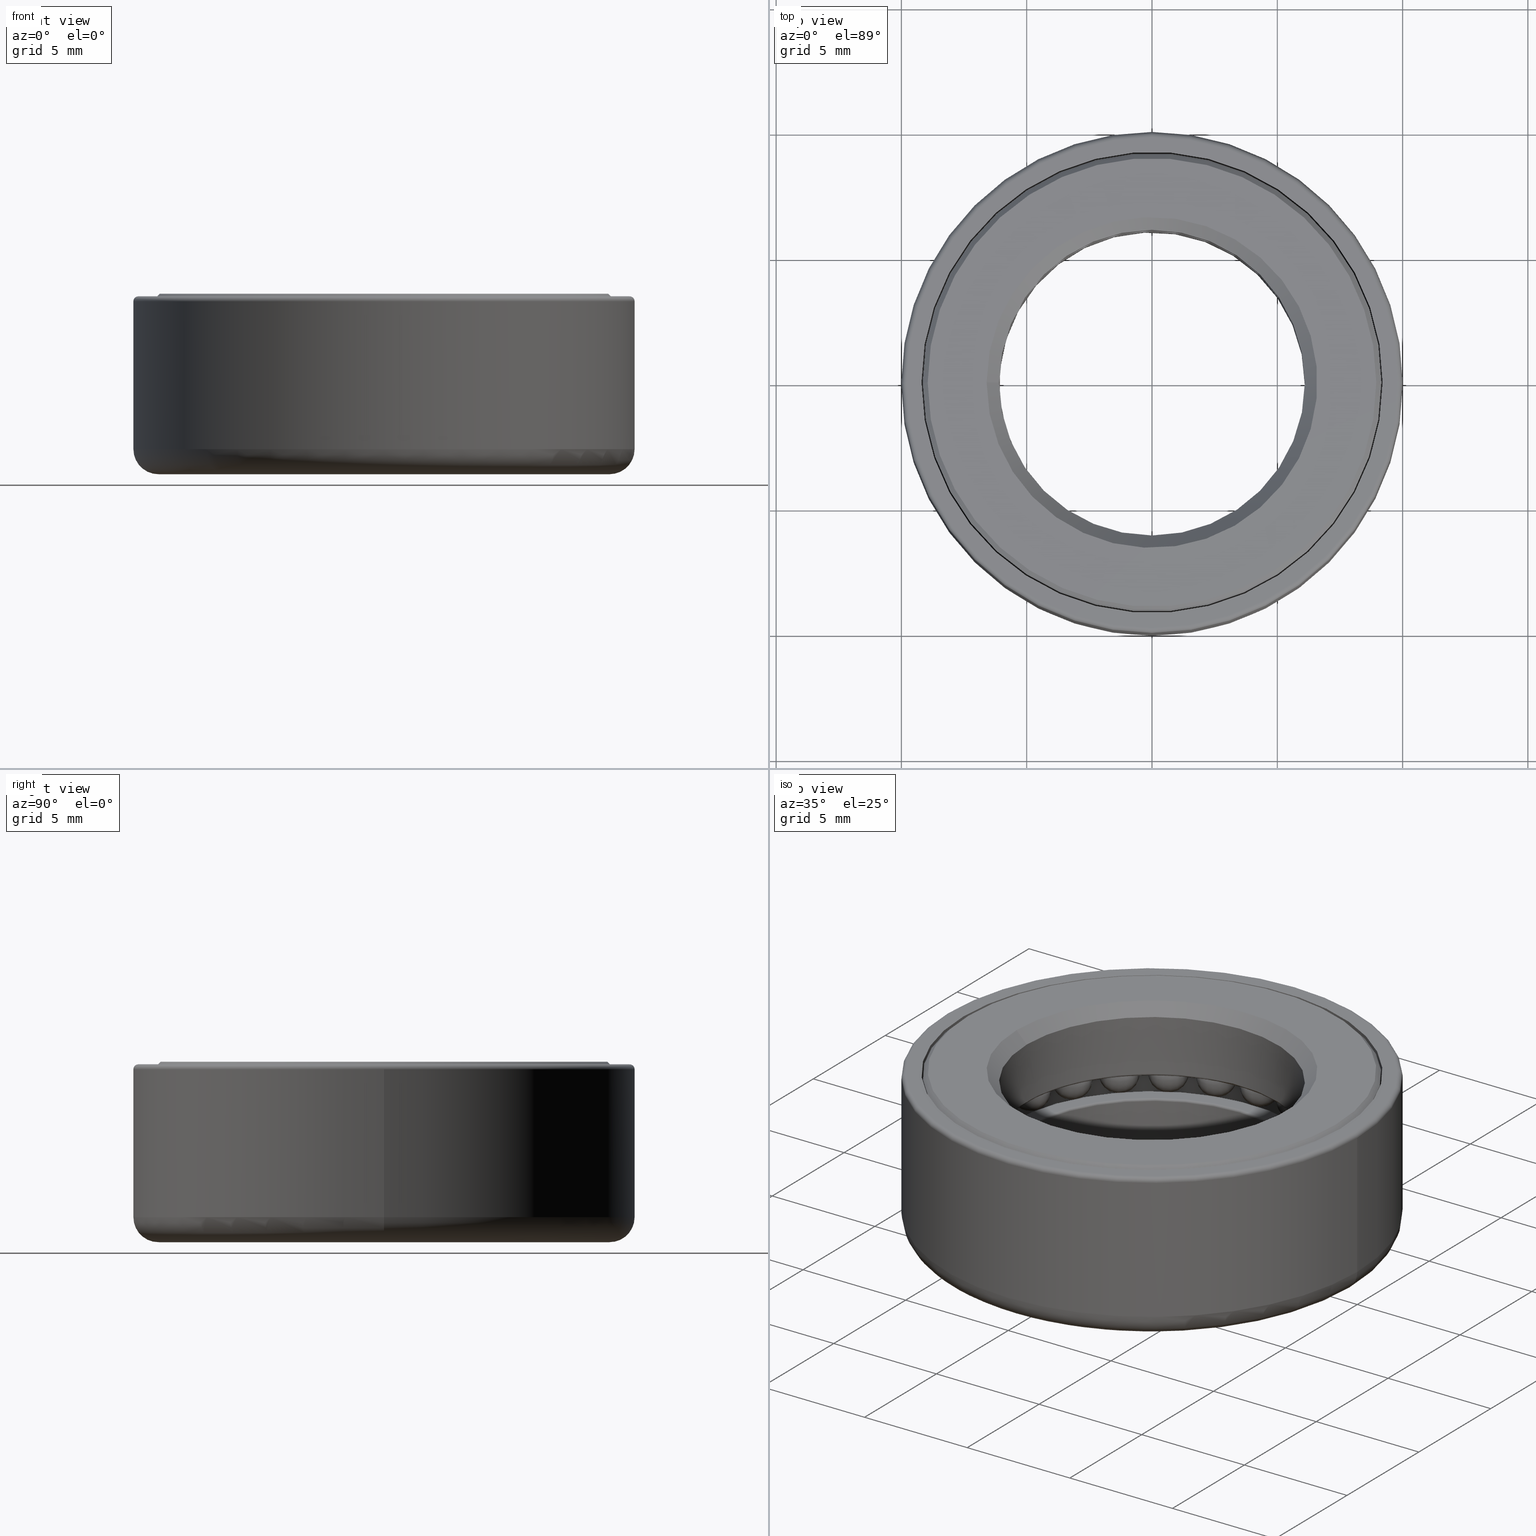
[diagram: canonical four-view strip — front | top / right | iso, engineering-drawing reading convention]
A machine part, canonical four-view strip (front | top / right | iso — engineering-drawing reading convention). The complete STEP part file that produces these views, byte-faithful:
ISO-10303-21;
HEADER;
FILE_DESCRIPTION (( 'STEP AP203' ),
    '1' );
FILE_NAME ('400-12.step',
    '2020-05-18T09:38:57',
    ( '' ),
    ( '' ),
    'SwSTEP 2.0',
    'SolidWorks 2015',
    '' );
FILE_SCHEMA (( 'CONFIG_CONTROL_DESIGN' ));
ENDSEC;

DATA;
#1 = PLANE ( 'NONE',  #569 ) ;
#2 = DIRECTION ( 'NONE',  ( 1.000000000000000000, 0.0000000000000000000, 0.0000000000000000000 ) ) ;
#3 = UNCERTAINTY_MEASURE_WITH_UNIT (LENGTH_MEASURE( 1.000000000000000100E-005 ), #535, 'distance_accuracy_value', 'NONE');
#4 = DIRECTION ( 'NONE',  ( 1.000000000000000000, 0.0000000000000000000, 0.0000000000000000000 ) ) ;
#5 = CYLINDRICAL_SURFACE ( 'NONE', #250, 6.099999999999999600 ) ;
#6 = SPHERICAL_SURFACE ( 'NONE', #201, 0.8112068965517236200 ) ;
#7 = AXIS2_PLACEMENT_3D ( 'NONE', #565, #81, #445 ) ;
#8 = DIRECTION ( 'NONE',  ( 0.2588190451025246800, -0.9659258262890672000, 0.0000000000000000000 ) ) ;
#9 = CARTESIAN_POINT ( 'NONE',  ( 0.0000000000000000000, 0.0000000000000000000, -0.6000000000000002000 ) ) ;
#10 = EDGE_CURVE ( 'NONE', #489, #489, #293, .T. ) ;
#11 = VERTEX_POINT ( 'NONE', #231 ) ;
#12 = DIRECTION ( 'NONE',  ( 0.7071067811865512400, -0.7071067811865438000, 0.0000000000000000000 ) ) ;
#13 = ORIENTED_EDGE ( 'NONE', *, *, #715, .F. ) ;
#14 = EDGE_LOOP ( 'NONE', ( #383 ) ) ;
#15 = MANIFOLD_SOLID_BREP ( 'Kreismuster1[7]', #664 ) ;
#16 = DIRECTION ( 'NONE',  ( 0.0000000000000000000, 0.0000000000000000000, -1.000000000000000000 ) ) ;
#17 = FACE_OUTER_BOUND ( 'NONE', #107, .T. ) ;
#18 = ADVANCED_FACE ( 'NONE', ( #698, #218 ), #560, .T. ) ;
#19 = AXIS2_PLACEMENT_3D ( 'NONE', #453, #79, #205 ) ;
#20 = ADVANCED_FACE ( 'NONE', ( #495, #108 ), #757, .T. ) ;
#21 = DIRECTION ( 'NONE',  ( 1.000000000000000000, 0.0000000000000000000, 0.0000000000000000000 ) ) ;
#22 = ORIENTED_EDGE ( 'NONE', *, *, #782, .T. ) ;
#23 = CIRCLE ( 'NONE', #541, 9.149999999999998600 ) ;
#24 = DIRECTION ( 'NONE',  ( -0.2588190451025314500, 0.9659258262890653100, 0.0000000000000000000 ) ) ;
#25 = EDGE_LOOP ( 'NONE', ( #779 ) ) ;
#26 = EDGE_CURVE ( 'NONE', #55, #55, #171, .T. ) ;
#27 = FACE_OUTER_BOUND ( 'NONE', #765, .T. ) ;
#28 = CARTESIAN_POINT ( 'NONE',  ( 0.0000000000000000000, 0.0000000000000000000, -0.6000000000000002000 ) ) ;
#29 = DIRECTION ( 'NONE',  ( -1.000000000000000000, 0.0000000000000000000, 0.0000000000000000000 ) ) ;
#30 = DIRECTION ( 'NONE',  ( -0.0000000000000000000, -0.0000000000000000000, 1.000000000000000000 ) ) ;
#31 = PERSON_AND_ORGANIZATION ( #281, #335 ) ;
#32 = DIRECTION ( 'NONE',  ( -0.0000000000000000000, -0.0000000000000000000, 1.000000000000000000 ) ) ;
#33 = VERTEX_POINT ( 'NONE', #648 ) ;
#34 = AXIS2_PLACEMENT_3D ( 'NONE', #91, #341, #87 ) ;
#35 = EDGE_LOOP ( 'NONE', ( #44 ) ) ;
#36 = CLOSED_SHELL ( 'NONE', ( #227 ) ) ;
#37 = EDGE_LOOP ( 'NONE', ( #340 ) ) ;
#38 = FACE_BOUND ( 'NONE', #658, .T. ) ;
#39 = DIRECTION ( 'NONE',  ( 1.000000000000000000, 0.0000000000000000000, 0.0000000000000000000 ) ) ;
#40 = EDGE_CURVE ( 'NONE', #299, #299, #680, .T. ) ;
#41 = ADVANCED_FACE ( 'NONE', ( ), #6, .T. ) ;
#42 = DIRECTION ( 'NONE',  ( -0.0000000000000000000, -0.0000000000000000000, 1.000000000000000000 ) ) ;
#43 = CARTESIAN_POINT ( 'NONE',  ( -8.949999999999995700, 0.0000000000000000000, 3.600000000000000100 ) ) ;
#44 = ORIENTED_EDGE ( 'NONE', *, *, #477, .T. ) ;
#45 = CYLINDRICAL_SURFACE ( 'NONE', #591, 10.00000000000000000 ) ;
#46 = CLOSED_SHELL ( 'NONE', ( #517, #318, #69, #462, #212, #695, #412, #623, #77, #18, #155, #20, #670 ) ) ;
#47 = MANIFOLD_SOLID_BREP ( 'Kreismuster1[9]', #437 ) ;
#48 = VERTEX_POINT ( 'NONE', #401 ) ;
#49 = CARTESIAN_POINT ( 'NONE',  ( -10.00000000000000000, 0.0000000000000000000, 3.299999999999999800 ) ) ;
#50 = AXIS2_PLACEMENT_3D ( 'NONE', #97, #410, #770 ) ;
#51 = CLOSED_SHELL ( 'NONE', ( #135 ) ) ;
#52 = ORIENTED_EDGE ( 'NONE', *, *, #26, .F. ) ;
#53 = CYLINDRICAL_SURFACE ( 'NONE', #284, 6.899999999999999500 ) ;
#54 = SECURITY_CLASSIFICATION ( '', '', #426 ) ;
#55 = VERTEX_POINT ( 'NONE', #515 ) ;
#56 = DIRECTION ( 'NONE',  ( 0.0000000000000000000, 0.0000000000000000000, -1.000000000000000000 ) ) ;
#57 = AXIS2_PLACEMENT_3D ( 'NONE', #158, #520, #39 ) ;
#58 = FACE_OUTER_BOUND ( 'NONE', #25, .T. ) ;
#59 = DIRECTION ( 'NONE',  ( 1.000000000000000000, 0.0000000000000000000, 0.0000000000000000000 ) ) ;
#60 = AXIS2_PLACEMENT_3D ( 'NONE', #574, #690, #90 ) ;
#61 = DIRECTION ( 'NONE',  ( -1.000000000000000000, 0.0000000000000000000, -0.0000000000000000000 ) ) ;
#62 = SPHERICAL_SURFACE ( 'NONE', #307, 0.8112068965517236200 ) ;
#63 = ADVANCED_FACE ( 'NONE', ( ), #474, .T. ) ;
#64 = DIRECTION ( 'NONE',  ( -0.0000000000000000000, -0.0000000000000000000, 1.000000000000000000 ) ) ;
#65 = ORIENTED_EDGE ( 'NONE', *, *, #217, .T. ) ;
#66 = ORIENTED_EDGE ( 'NONE', *, *, #232, .T. ) ;
#67 = AXIS2_PLACEMENT_3D ( 'NONE', #487, #246, #611 ) ;
#68 = CARTESIAN_POINT ( 'NONE',  ( 0.0000000000000000000, 0.0000000000000000000, 2.800000000000000300 ) ) ;
#69 = ADVANCED_FACE ( 'NONE', ( #667, #38 ), #526, .F. ) ;
#70 = DIRECTION ( 'NONE',  ( 0.0000000000000000000, 0.0000000000000000000, -1.000000000000000000 ) ) ;
#71 = DIRECTION ( 'NONE',  ( 0.0000000000000000000, 0.0000000000000000000, -1.000000000000000000 ) ) ;
#72 = EDGE_CURVE ( 'NONE', #188, #188, #364, .T. ) ;
#73 = DIRECTION ( 'NONE',  ( 0.8660254037844415900, -0.4999999999999948400, 0.0000000000000000000 ) ) ;
#74 = VERTEX_POINT ( 'NONE', #476 ) ;
#75 = CLOSED_SHELL ( 'NONE', ( #508 ) ) ;
#76 = CARTESIAN_POINT ( 'NONE',  ( 7.281914957670624100, -1.951183232259879200, 0.0000000000000000000 ) ) ;
#77 = ADVANCED_FACE ( 'NONE', ( #632, #147 ), #255, .F. ) ;
#78 = DIRECTION ( 'NONE',  ( -0.0000000000000000000, -0.0000000000000000000, 1.000000000000000000 ) ) ;
#79 = DIRECTION ( 'NONE',  ( -0.0000000000000000000, -0.0000000000000000000, 1.000000000000000000 ) ) ;
#80 = ADVANCED_FACE ( 'NONE', ( #312, #580 ), #587, .F. ) ;
#81 = DIRECTION ( 'NONE',  ( 0.4999999999999920100, 0.8660254037844432600, 0.0000000000000000000 ) ) ;
#82 = CARTESIAN_POINT ( 'NONE',  ( 0.0000000000000000000, 0.0000000000000000000, -2.750000000000000000 ) ) ;
#83 = MANIFOLD_SOLID_BREP ( 'Kreismuster1[8]', #686 ) ;
#84 = CALENDAR_DATE ( 2020, 18, 5 ) ;
#85 = AXIS2_PLACEMENT_3D ( 'NONE', #618, #260, #59 ) ;
#86 = CLOSED_SHELL ( 'NONE', ( #744 ) ) ;
#87 = DIRECTION ( 'NONE',  ( 1.000000000000000000, 0.0000000000000000000, 0.0000000000000000000 ) ) ;
#88 = AXIS2_PLACEMENT_3D ( 'NONE', #663, #184, #432 ) ;
#89 = DIRECTION ( 'NONE',  ( 0.0000000000000000000, 0.0000000000000000000, -1.000000000000000000 ) ) ;
#90 = DIRECTION ( 'NONE',  ( 1.000000000000000000, 0.0000000000000000000, 0.0000000000000000000 ) ) ;
#91 = CARTESIAN_POINT ( 'NONE',  ( 0.0000000000000000000, 0.0000000000000000000, 0.0000000000000000000 ) ) ;
#92 = CARTESIAN_POINT ( 'NONE',  ( 0.0000000000000000000, 0.0000000000000000000, -3.600000000000000100 ) ) ;
#93 = ADVANCED_FACE ( 'NONE', ( ), #403, .T. ) ;
#94 = DATE_AND_TIME ( #263, #533 ) ;
#95 = CC_DESIGN_DATE_AND_TIME_ASSIGNMENT ( #120, #598, ( #54 ) ) ;
#96 = DIRECTION ( 'NONE',  ( 0.0000000000000000000, 0.0000000000000000000, -1.000000000000000000 ) ) ;
#97 = CARTESIAN_POINT ( 'NONE',  ( 0.0000000000000000000, 0.0000000000000000000, 3.099999999999997900 ) ) ;
#98 = EDGE_LOOP ( 'NONE', ( #601 ) ) ;
#99 = SPHERICAL_SURFACE ( 'NONE', #723, 0.8112068965517236200 ) ;
#100 = CARTESIAN_POINT ( 'NONE',  ( 0.0000000000000000000, 0.0000000000000000000, 0.0000000000000000000 ) ) ;
#101 = FACE_BOUND ( 'NONE', #156, .T. ) ;
#102 = AXIS2_PLACEMENT_3D ( 'NONE', #28, #209, #282 ) ;
#103 = CARTESIAN_POINT ( 'NONE',  ( 6.899999999999999500, 0.0000000000000000000, 2.800000000000000300 ) ) ;
#104 = AXIS2_PLACEMENT_3D ( 'NONE', #442, #378, #728 ) ;
#105 = CARTESIAN_POINT ( 'NONE',  ( 10.00000000000000000, 0.0000000000000000000, -2.600000000000000100 ) ) ;
#106 = SPHERICAL_SURFACE ( 'NONE', #332, 0.8112068965517236200 ) ;
#107 = EDGE_LOOP ( 'NONE', ( #215 ) ) ;
#108 = FACE_OUTER_BOUND ( 'NONE', #37, .T. ) ;
#109 = APPLICATION_PROTOCOL_DEFINITION ( 'international standard', 'config_control_design', 1994, #359 ) ;
#110 = AXIS2_PLACEMENT_3D ( 'NONE', #739, #257, #199 ) ;
#111 = CALENDAR_DATE ( 2020, 18, 5 ) ;
#112 = APPROVAL_PERSON_ORGANIZATION ( #287, #708, #539 ) ;
#113 = EDGE_LOOP ( 'NONE', ( #52 ) ) ;
#114 = CARTESIAN_POINT ( 'NONE',  ( -7.281914957670597500, -1.951183232259981400, 0.0000000000000000000 ) ) ;
#115 = FACE_OUTER_BOUND ( 'NONE', #351, .T. ) ;
#116 = MANIFOLD_SOLID_BREP ( 'Kreismuster1[1]', #175 ) ;
#117 = PLANE ( 'NONE',  #534 ) ;
#118 = EDGE_CURVE ( 'NONE', #408, #408, #228, .T. ) ;
#119 = CC_DESIGN_APPROVAL ( #419, ( #559 ) ) ;
#120 = DATE_AND_TIME ( #653, #546 ) ;
#121 = DIRECTION ( 'NONE',  ( 0.0000000000000000000, 0.0000000000000000000, -1.000000000000000000 ) ) ;
#122 = DIRECTION ( 'NONE',  ( 0.0000000000000000000, 0.0000000000000000000, -1.000000000000000000 ) ) ;
#123 = AXIS2_PLACEMENT_3D ( 'NONE', #100, #712, #225 ) ;
#124 = SPHERICAL_SURFACE ( 'NONE', #172, 0.8112068965517236200 ) ;
#125 = ORIENTED_EDGE ( 'NONE', *, *, #701, .T. ) ;
#126 = DIRECTION ( 'NONE',  ( -0.7071067811865561200, 0.7071067811865389100, 0.0000000000000000000 ) ) ;
#127 = DIRECTION ( 'NONE',  ( 0.0000000000000000000, 0.0000000000000000000, -1.000000000000000000 ) ) ;
#128 = CARTESIAN_POINT ( 'NONE',  ( -1.951183232259955800, 7.281914957670601900, 0.0000000000000000000 ) ) ;
#129 = MANIFOLD_SOLID_BREP ( 'Kreismuster1[23]', #676 ) ;
#130 = AXIS2_PLACEMENT_3D ( 'NONE', #704, #242, #56 ) ;
#131 = ADVANCED_FACE ( 'NONE', ( ), #595, .T. ) ;
#132 = DIRECTION ( 'NONE',  ( 0.0000000000000000000, 0.0000000000000000000, -1.000000000000000000 ) ) ;
#133 = DIRECTION ( 'NONE',  ( 0.0000000000000000000, 0.0000000000000000000, -1.000000000000000000 ) ) ;
#134 = CARTESIAN_POINT ( 'NONE',  ( 0.0000000000000000000, 0.0000000000000000000, -0.6000000000000002000 ) ) ;
#135 = ADVANCED_FACE ( 'NONE', ( ), #504, .T. ) ;
#136 = EDGE_LOOP ( 'NONE', ( #301 ) ) ;
#137 = CIRCLE ( 'NONE', #615, 6.899999999999999500 ) ;
#138 = CARTESIAN_POINT ( 'NONE',  ( 0.0000000000000000000, 0.0000000000000000000, 3.299999999999999800 ) ) ;
#139 = CARTESIAN_POINT ( 'NONE',  ( 7.538793103448274900, 7.896466631426689100E-014, 0.0000000000000000000 ) ) ;
#140 = AXIS2_PLACEMENT_3D ( 'NONE', #328, #324, #683 ) ;
#141 = VERTEX_POINT ( 'NONE', #103 ) ;
#142 = ADVANCED_FACE ( 'NONE', ( ), #342, .T. ) ;
#143 = MANIFOLD_SOLID_BREP ( 'Kreismuster1[2]', #679 ) ;
#144 = CLOSED_SHELL ( 'NONE', ( #63 ) ) ;
#145 = CARTESIAN_POINT ( 'NONE',  ( 0.0000000000000000000, 0.0000000000000000000, 0.0000000000000000000 ) ) ;
#146 = SPHERICAL_SURFACE ( 'NONE', #208, 0.8112068965517236200 ) ;
#147 = FACE_OUTER_BOUND ( 'NONE', #392, .T. ) ;
#148 = CC_DESIGN_APPROVAL ( #650, ( #54 ) ) ;
#149 = CARTESIAN_POINT ( 'NONE',  ( 3.769396551724191200, -6.528786341461102300, 0.0000000000000000000 ) ) ;
#150 = DIRECTION ( 'NONE',  ( 0.0000000000000000000, -0.0000000000000000000, 1.000000000000000000 ) ) ;
#151 = AXIS2_PLACEMENT_3D ( 'NONE', #642, #42, #525 ) ;
#152 = DIRECTION ( 'NONE',  ( -1.000000000000000000, 0.0000000000000000000, 0.0000000000000000000 ) ) ;
#153 = DIRECTION ( 'NONE',  ( 1.000000000000000000, 0.0000000000000000000, 0.0000000000000000000 ) ) ;
#154 = EDGE_LOOP ( 'NONE', ( #640 ) ) ;
#155 = ADVANCED_FACE ( 'NONE', ( #641, #483 ), #731, .T. ) ;
#156 = EDGE_LOOP ( 'NONE', ( #267 ) ) ;
#157 = EDGE_LOOP ( 'NONE', ( #479 ) ) ;
#158 = CARTESIAN_POINT ( 'NONE',  ( 0.0000000000000000000, 0.0000000000000000000, -2.750000000000000000 ) ) ;
#159 = ORIENTED_EDGE ( 'NONE', *, *, #399, .T. ) ;
#160 = CARTESIAN_POINT ( 'NONE',  ( 6.528786341461089800, 3.769396551724213400, 0.0000000000000000000 ) ) ;
#161 = FACE_BOUND ( 'NONE', #339, .T. ) ;
#162 = DIRECTION ( 'NONE',  ( -0.9659258262890717500, 0.2588190451025078600, 0.0000000000000000000 ) ) ;
#163 = CARTESIAN_POINT ( 'NONE',  ( 0.0000000000000000000, 8.349999999999997900, -2.750000000000000000 ) ) ;
#164 = ADVANCED_FACE ( 'NONE', ( #659, #775 ), #449, .T. ) ;
#165 = APPLICATION_PROTOCOL_DEFINITION ( 'international standard', 'config_control_design', 1994, #237 ) ;
#166 = EDGE_CURVE ( 'NONE', #390, #390, #441, .T. ) ;
#167 = CYLINDRICAL_SURFACE ( 'NONE', #151, 9.199999999999997500 ) ;
#168 = CC_DESIGN_PERSON_AND_ORGANIZATION_ASSIGNMENT ( #358, #469, ( #559 ) ) ;
#169 = EDGE_LOOP ( 'NONE', ( #327 ) ) ;
#170 = TOROIDAL_SURFACE ( 'NONE', #85, 6.200000000000000200, 0.1000000000000000100 ) ;
#171 = CIRCLE ( 'NONE', #747, 8.349999999999997900 ) ;
#172 = AXIS2_PLACEMENT_3D ( 'NONE', #128, #380, #494 ) ;
#173 = PERSON_AND_ORGANIZATION_ROLE ( 'design_supplier' ) ;
#174 = VERTEX_POINT ( 'NONE', #296 ) ;
#175 = CLOSED_SHELL ( 'NONE', ( #353 ) ) ;
#176 = ORIENTED_EDGE ( 'NONE', *, *, #516, .T. ) ;
#177 = ORIENTED_EDGE ( 'NONE', *, *, #715, .T. ) ;
#178 = CARTESIAN_POINT ( 'NONE',  ( 0.0000000000000000000, 6.099999999999999600, 0.5000000000000001100 ) ) ;
#179 = VERTEX_POINT ( 'NONE', #420 ) ;
#180 = AXIS2_PLACEMENT_3D ( 'NONE', #134, #749, #152 ) ;
#181 = EDGE_LOOP ( 'NONE', ( #159 ) ) ;
#182 = FACE_OUTER_BOUND ( 'NONE', #588, .T. ) ;
#183 = FACE_OUTER_BOUND ( 'NONE', #501, .T. ) ;
#184 = DIRECTION ( 'NONE',  ( 0.0000000000000000000, 0.0000000000000000000, -1.000000000000000000 ) ) ;
#185 = DIRECTION ( 'NONE',  ( -1.000000000000000000, 0.0000000000000000000, -0.0000000000000000000 ) ) ;
#186 = DIRECTION ( 'NONE',  ( -0.0000000000000000000, -0.0000000000000000000, 1.000000000000000000 ) ) ;
#187 = PLANE ( 'NONE',  #552 ) ;
#188 = VERTEX_POINT ( 'NONE', #636 ) ;
#189 = AXIS2_PLACEMENT_3D ( 'NONE', #768, #584, #279 ) ;
#190 = CARTESIAN_POINT ( 'NONE',  ( 0.0000000000000000000, 0.0000000000000000000, 0.0000000000000000000 ) ) ;
#191 = ADVANCED_FACE ( 'NONE', ( ), #593, .T. ) ;
#192 = DIRECTION ( 'NONE',  ( -1.000000000000000000, 0.0000000000000000000, 0.0000000000000000000 ) ) ;
#193 = DESIGN_CONTEXT ( 'detailed design', #237, 'design' ) ;
#194 = AXIS2_PLACEMENT_3D ( 'NONE', #528, #693, #89 ) ;
#195 = CARTESIAN_POINT ( 'NONE',  ( 0.0000000000000000000, 0.0000000000000000000, 3.500000000000000000 ) ) ;
#196 = ADVANCED_FACE ( 'NONE', ( ), #253, .T. ) ;
#197 = DIRECTION ( 'NONE',  ( -1.000000000000000000, 0.0000000000000000000, 0.0000000000000000000 ) ) ;
#198 = VERTEX_POINT ( 'NONE', #590 ) ;
#199 = DIRECTION ( 'NONE',  ( -1.000000000000000000, 0.0000000000000000000, 0.0000000000000000000 ) ) ;
#200 = CLOSED_SHELL ( 'NONE', ( #41 ) ) ;
#201 = AXIS2_PLACEMENT_3D ( 'NONE', #275, #764, #759 ) ;
#202 = MANIFOLD_SOLID_BREP ( 'Kreismuster1[6]', #36 ) ;
#203 = SPHERICAL_SURFACE ( 'NONE', #752, 0.8112068965517236200 ) ;
#204 = PRODUCT_DEFINITION ( 'UNKNOWN', '', #559, #193 ) ;
#205 = DIRECTION ( 'NONE',  ( 1.000000000000000000, 0.0000000000000000000, 0.0000000000000000000 ) ) ;
#206 = DIRECTION ( 'NONE',  ( 1.000000000000000000, 0.0000000000000000000, 0.0000000000000000000 ) ) ;
#207 = DIRECTION ( 'NONE',  ( 0.0000000000000000000, 0.0000000000000000000, -1.000000000000000000 ) ) ;
#208 = AXIS2_PLACEMENT_3D ( 'NONE', #496, #73, #16 ) ;
#209 = DIRECTION ( 'NONE',  ( -0.0000000000000000000, -0.0000000000000000000, 1.000000000000000000 ) ) ;
#210 = COORDINATED_UNIVERSAL_TIME_OFFSET ( 1, 0, .AHEAD. ) ;
#211 = PRODUCT ( '400-12', '400-12', '', ( #417 ) ) ;
#212 = ADVANCED_FACE ( 'NONE', ( #783, #278 ), #1, .F. ) ;
#213 = CLOSED_SHELL ( 'NONE', ( #737 ) ) ;
#214 = CARTESIAN_POINT ( 'NONE',  ( -6.600000000000001400, 0.0000000000000000000, 3.600000000000000100 ) ) ;
#215 = ORIENTED_EDGE ( 'NONE', *, *, #477, .F. ) ;
#216 = EDGE_LOOP ( 'NONE', ( #424 ) ) ;
#217 = EDGE_CURVE ( 'NONE', #48, #48, #439, .T. ) ;
#218 = FACE_OUTER_BOUND ( 'NONE', #756, .T. ) ;
#219 = DIRECTION ( 'NONE',  ( -1.000000000000000000, 0.0000000000000000000, -0.0000000000000000000 ) ) ;
#220 = DIRECTION ( 'NONE',  ( 1.000000000000000000, 0.0000000000000000000, 0.0000000000000000000 ) ) ;
#221 = ADVANCED_FACE ( 'NONE', ( #649, #570 ), #117, .F. ) ;
#222 = DIRECTION ( 'NONE',  ( -1.000000000000000000, 0.0000000000000000000, 0.0000000000000000000 ) ) ;
#223 = DIRECTION ( 'NONE',  ( -1.000000000000000000, 0.0000000000000000000, 0.0000000000000000000 ) ) ;
#224 = ORIENTED_EDGE ( 'NONE', *, *, #356, .T. ) ;
#225 = DIRECTION ( 'NONE',  ( 1.000000000000000000, 0.0000000000000000000, 0.0000000000000000000 ) ) ;
#226 = FACE_OUTER_BOUND ( 'NONE', #720, .T. ) ;
#227 = ADVANCED_FACE ( 'NONE', ( ), #373, .T. ) ;
#228 = CIRCLE ( 'NONE', #774, 6.599999999999996100 ) ;
#229 = AXIS2_PLACEMENT_3D ( 'NONE', #628, #207, #396 ) ;
#230 = FACE_OUTER_BOUND ( 'NONE', #706, .T. ) ;
#231 = CARTESIAN_POINT ( 'NONE',  ( 6.200000000000000200, 0.0000000000000000000, 0.5000000000000001100 ) ) ;
#232 = EDGE_CURVE ( 'NONE', #762, #762, #415, .T. ) ;
#233 = APPROVAL_DATE_TIME ( #397, #650 ) ;
#234 = CARTESIAN_POINT ( 'NONE',  ( 6.899999999999999500, 0.0000000000000000000, -2.800000000000000300 ) ) ;
#235 = FACE_BOUND ( 'NONE', #602, .T. ) ;
#236 = EDGE_LOOP ( 'NONE', ( #773 ) ) ;
#237 = APPLICATION_CONTEXT ( 'configuration controlled 3d designs of mechanical parts and assemblies' ) ;
#238 = AXIS2_PLACEMENT_3D ( 'NONE', #758, #219, #763 ) ;
#239 = FACE_OUTER_BOUND ( 'NONE', #157, .T. ) ;
#240 = SPHERICAL_SURFACE ( 'NONE', #288, 0.8112068965517236200 ) ;
#241 = AXIS2_PLACEMENT_3D ( 'NONE', #138, #71, #625 ) ;
#242 = DIRECTION ( 'NONE',  ( -0.4999999999999980000, -0.8660254037844398200, -0.0000000000000000000 ) ) ;
#243 = EDGE_LOOP ( 'NONE', ( #22 ) ) ;
#244 = SPHERICAL_SURFACE ( 'NONE', #605, 0.8112068965517236200 ) ;
#245 = DIRECTION ( 'NONE',  ( -0.0000000000000000000, -0.0000000000000000000, 1.000000000000000000 ) ) ;
#246 = DIRECTION ( 'NONE',  ( -0.0000000000000000000, -0.0000000000000000000, -1.000000000000000000 ) ) ;
#247 = DIRECTION ( 'NONE',  ( 1.000000000000000000, 0.0000000000000000000, 0.0000000000000000000 ) ) ;
#248 = LOCAL_TIME ( 11, 38, 57.00000000000000000, #421 ) ;
#249 = DIRECTION ( 'NONE',  ( -0.0000000000000000000, -0.0000000000000000000, 1.000000000000000000 ) ) ;
#250 = AXIS2_PLACEMENT_3D ( 'NONE', #375, #616, #2 ) ;
#251 = EDGE_LOOP ( 'NONE', ( #511 ) ) ;
#252 = DIRECTION ( 'NONE',  ( 3.491481338843133400E-015, -1.000000000000000000, 0.0000000000000000000 ) ) ;
#253 = SPHERICAL_SURFACE ( 'NONE', #294, 0.8112068965517236200 ) ;
#254 = ORIENTED_EDGE ( 'NONE', *, *, #217, .F. ) ;
#255 = CONICAL_SURFACE ( 'NONE', #575, 6.599999999999996100, 0.7853981633974465000 ) ;
#256 = DIRECTION ( 'NONE',  ( 1.000000000000000000, 0.0000000000000000000, 0.0000000000000000000 ) ) ;
#257 = DIRECTION ( 'NONE',  ( -0.0000000000000000000, -0.0000000000000000000, 1.000000000000000000 ) ) ;
#258 = FACE_OUTER_BOUND ( 'NONE', #621, .T. ) ;
#259 = EDGE_CURVE ( 'NONE', #518, #518, #769, .T. ) ;
#260 = DIRECTION ( 'NONE',  ( -0.0000000000000000000, -0.0000000000000000000, 1.000000000000000000 ) ) ;
#261 = ADVANCED_FACE ( 'NONE', ( #755, #687 ), #672, .F. ) ;
#262 = COORDINATED_UNIVERSAL_TIME_OFFSET ( 1, 0, .AHEAD. ) ;
#263 = CALENDAR_DATE ( 2020, 18, 5 ) ;
#264 = ADVANCED_FACE ( 'NONE', ( ), #244, .T. ) ;
#265 = CC_DESIGN_PERSON_AND_ORGANIZATION_ASSIGNMENT ( #297, #173, ( #559 ) ) ;
#266 = ORIENTED_EDGE ( 'NONE', *, *, #356, .F. ) ;
#267 = ORIENTED_EDGE ( 'NONE', *, *, #740, .T. ) ;
#268 = CYLINDRICAL_SURFACE ( 'NONE', #486, 6.099999999999999600 ) ;
#269 = MANIFOLD_SOLID_BREP ( 'Kreismuster1[14]', #567 ) ;
#270 = PRODUCT_DEFINITION_SHAPE ( 'NONE', 'NONE',  #204 ) ;
#271 = DIRECTION ( 'NONE',  ( 0.0000000000000000000, 0.0000000000000000000, 1.000000000000000000 ) ) ;
#272 = AXIS2_PLACEMENT_3D ( 'NONE', #634, #409, #333 ) ;
#273 = DIRECTION ( 'NONE',  ( -0.0000000000000000000, -0.0000000000000000000, 1.000000000000000000 ) ) ;
#274 = DATE_AND_TIME ( #111, #617 ) ;
#275 = CARTESIAN_POINT ( 'NONE',  ( -1.951183232259905000, -7.281914957670617000, 0.0000000000000000000 ) ) ;
#276 = EDGE_LOOP ( 'NONE', ( #322 ) ) ;
#277 = EDGE_CURVE ( 'NONE', #619, #619, #291, .T. ) ;
#278 = FACE_BOUND ( 'NONE', #320, .T. ) ;
#279 = DIRECTION ( 'NONE',  ( 1.000000000000000000, 0.0000000000000000000, 0.0000000000000000000 ) ) ;
#280 = ADVANCED_FACE ( 'NONE', ( ), #203, .T. ) ;
#281 = PERSON ( 'UNSPECIFIED', 'UNSPECIFIED', 'UNSPECIFIED', ('UNSPECIFIED'), ('UNSPECIFIED'), ('UNSPECIFIED') ) ;
#282 = DIRECTION ( 'NONE',  ( -1.000000000000000000, 0.0000000000000000000, 0.0000000000000000000 ) ) ;
#283 = DIRECTION ( 'NONE',  ( 0.0000000000000000000, 0.0000000000000000000, -1.000000000000000000 ) ) ;
#284 = AXIS2_PLACEMENT_3D ( 'NONE', #145, #510, #505 ) ;
#285 = ADVANCED_FACE ( 'NONE', ( #226, #235 ), #696, .T. ) ;
#286 = DIRECTION ( 'NONE',  ( 0.0000000000000000000, 0.0000000000000000000, -1.000000000000000000 ) ) ;
#287 = PERSON_AND_ORGANIZATION ( #281, #335 ) ;
#288 = AXIS2_PLACEMENT_3D ( 'NONE', #149, #345, #96 ) ;
#289 = MANIFOLD_SOLID_BREP ( 'Kreismuster1[5]', #51 ) ;
#290 = EDGE_LOOP ( 'NONE', ( #594 ) ) ;
#291 = CIRCLE ( 'NONE', #241, 10.00000000000000000 ) ;
#292 = EDGE_LOOP ( 'NONE', ( #176 ) ) ;
#293 = CIRCLE ( 'NONE', #556, 6.600000000000001400 ) ;
#294 = AXIS2_PLACEMENT_3D ( 'NONE', #114, #8, #433 ) ;
#295 =( NAMED_UNIT ( * ) SI_UNIT ( $, .STERADIAN. ) SOLID_ANGLE_UNIT ( ) );
#296 = CARTESIAN_POINT ( 'NONE',  ( -9.149999999999998600, 0.0000000000000000000, 3.399999999999997700 ) ) ;
#297 = PERSON_AND_ORGANIZATION ( #281, #335 ) ;
#298 = MANIFOLD_SOLID_BREP ( 'Kreismuster1[11]', #200 ) ;
#299 = VERTEX_POINT ( 'NONE', #578 ) ;
#300 = ORIENTED_EDGE ( 'NONE', *, *, #516, .F. ) ;
#301 = ORIENTED_EDGE ( 'NONE', *, *, #277, .T. ) ;
#302 = EDGE_LOOP ( 'NONE', ( #13 ) ) ;
#303 = FACE_BOUND ( 'NONE', #290, .T. ) ;
#304 = CC_DESIGN_APPROVAL ( #708, ( #204 ) ) ;
#305 = DIRECTION ( 'NONE',  ( 0.0000000000000000000, -0.0000000000000000000, 1.000000000000000000 ) ) ;
#306 = CIRCLE ( 'NONE', #57, 9.149999999999998600 ) ;
#307 = AXIS2_PLACEMENT_3D ( 'NONE', #406, #162, #531 ) ;
#308 = DIRECTION ( 'NONE',  ( 1.000000000000000000, 0.0000000000000000000, 0.0000000000000000000 ) ) ;
#309 = CARTESIAN_POINT ( 'NONE',  ( -7.281914957670609900, 1.951183232259930300, 0.0000000000000000000 ) ) ;
#310 = CLOSED_SHELL ( 'NONE', ( #503 ) ) ;
#311 = CIRCLE ( 'NONE', #694, 9.799999999999998900 ) ;
#312 = FACE_OUTER_BOUND ( 'NONE', #371, .T. ) ;
#313 = CARTESIAN_POINT ( 'NONE',  ( 3.769396551724053500, 6.528786341461181300, 0.0000000000000000000 ) ) ;
#314 = EDGE_CURVE ( 'NONE', #540, #540, #612, .T. ) ;
#315 = DIRECTION ( 'NONE',  ( 0.0000000000000000000, 0.0000000000000000000, -1.000000000000000000 ) ) ;
#316 = DIRECTION ( 'NONE',  ( 1.000000000000000000, 0.0000000000000000000, 0.0000000000000000000 ) ) ;
#317 = PERSON_AND_ORGANIZATION ( #281, #335 ) ;
#318 = ADVANCED_FACE ( 'NONE', ( #430, #115 ), #268, .F. ) ;
#319 = AXIS2_PLACEMENT_3D ( 'NONE', #550, #553, #256 ) ;
#320 = EDGE_LOOP ( 'NONE', ( #522 ) ) ;
#321 = ORIENTED_EDGE ( 'NONE', *, *, #761, .F. ) ;
#322 = ORIENTED_EDGE ( 'NONE', *, *, #502, .T. ) ;
#323 = SPHERICAL_SURFACE ( 'NONE', #352, 0.8112068965517236200 ) ;
#324 = DIRECTION ( 'NONE',  ( 0.0000000000000000000, 0.0000000000000000000, -1.000000000000000000 ) ) ;
#325 = DIRECTION ( 'NONE',  ( 1.000000000000000000, 0.0000000000000000000, 0.0000000000000000000 ) ) ;
#326 = VERTEX_POINT ( 'NONE', #538 ) ;
#327 = ORIENTED_EDGE ( 'NONE', *, *, #635, .F. ) ;
#328 = CARTESIAN_POINT ( 'NONE',  ( 0.0000000000000000000, 6.899999999999999500, -0.5000000000000001100 ) ) ;
#329 = SPHERICAL_SURFACE ( 'NONE', #411, 0.8112068965517236200 ) ;
#330 = DIRECTION ( 'NONE',  ( 0.2588190451025111900, 0.9659258262890708700, 0.0000000000000000000 ) ) ;
#331 = DIRECTION ( 'NONE',  ( -1.000000000000000000, 0.0000000000000000000, 0.0000000000000000000 ) ) ;
#332 = AXIS2_PLACEMENT_3D ( 'NONE', #675, #436, #681 ) ;
#333 = DIRECTION ( 'NONE',  ( 1.000000000000000000, 0.0000000000000000000, 0.0000000000000000000 ) ) ;
#334 = PERSON_AND_ORGANIZATION ( #281, #335 ) ;
#335 = ORGANIZATION ( 'UNSPECIFIED', 'UNSPECIFIED', '' ) ;
#336 = CARTESIAN_POINT ( 'NONE',  ( 9.199999999999997500, 0.0000000000000000000, 3.500000000000000000 ) ) ;
#337 = ORIENTED_EDGE ( 'NONE', *, *, #761, .T. ) ;
#338 = AXIS2_PLACEMENT_3D ( 'NONE', #639, #286, #29 ) ;
#339 = EDGE_LOOP ( 'NONE', ( #466 ) ) ;
#340 = ORIENTED_EDGE ( 'NONE', *, *, #259, .F. ) ;
#341 = DIRECTION ( 'NONE',  ( -0.0000000000000000000, -0.0000000000000000000, 1.000000000000000000 ) ) ;
#342 = SPHERICAL_SURFACE ( 'NONE', #674, 0.8112068965517236200 ) ;
#343 = DIRECTION ( 'NONE',  ( 1.000000000000000000, 0.0000000000000000000, 0.0000000000000000000 ) ) ;
#344 = SPHERICAL_SURFACE ( 'NONE', #422, 0.8112068965517236200 ) ;
#345 = DIRECTION ( 'NONE',  ( 0.8660254037844344900, 0.5000000000000069900, 0.0000000000000000000 ) ) ;
#346 = DIRECTION ( 'NONE',  ( -0.5000000000000099900, 0.8660254037844327100, 0.0000000000000000000 ) ) ;
#347 = ADVANCED_FACE ( 'NONE', ( ), #106, .T. ) ;
#348 = VERTEX_POINT ( 'NONE', #414 ) ;
#349 = MANIFOLD_SOLID_BREP ( 'Kreismuster1[18]', #354 ) ;
#350 = APPROVAL_STATUS ( 'not_yet_approved' ) ;
#351 = EDGE_LOOP ( 'NONE', ( #65 ) ) ;
#352 = AXIS2_PLACEMENT_3D ( 'NONE', #139, #627, #572 ) ;
#353 = ADVANCED_FACE ( 'NONE', ( ), #124, .T. ) ;
#354 = CLOSED_SHELL ( 'NONE', ( #626 ) ) ;
#355 = FACE_OUTER_BOUND ( 'NONE', #98, .T. ) ;
#356 = EDGE_CURVE ( 'NONE', #446, #446, #707, .T. ) ;
#357 = CC_DESIGN_PERSON_AND_ORGANIZATION_ASSIGNMENT ( #317, #646, ( #211 ) ) ;
#358 = PERSON_AND_ORGANIZATION ( #281, #335 ) ;
#359 = APPLICATION_CONTEXT ( 'configuration controlled 3d designs of mechanical parts and assemblies' ) ;
#360 = VERTEX_POINT ( 'NONE', #43 ) ;
#361 = MANIFOLD_SOLID_BREP ( 'Kreismuster1[20]', #524 ) ;
#362 = ORIENTED_EDGE ( 'NONE', *, *, #166, .T. ) ;
#363 = ORIENTED_EDGE ( 'NONE', *, *, #277, .F. ) ;
#364 = CIRCLE ( 'NONE', #50, 6.099999999999999600 ) ;
#365 = DIRECTION ( 'NONE',  ( 1.000000000000000000, 0.0000000000000000000, 0.0000000000000000000 ) ) ;
#366 = AXIS2_PLACEMENT_3D ( 'NONE', #754, #700, #702 ) ;
#367 = FACE_OUTER_BOUND ( 'NONE', #181, .T. ) ;
#368 = AXIS2_PLACEMENT_3D ( 'NONE', #730, #377, #385 ) ;
#369 = SPHERICAL_SURFACE ( 'NONE', #238, 0.8112068965517236200 ) ;
#370 = DIRECTION ( 'NONE',  ( -0.2588190451025179100, -0.9659258262890689800, -0.0000000000000000000 ) ) ;
#371 = EDGE_LOOP ( 'NONE', ( #719 ) ) ;
#372 = DIRECTION ( 'NONE',  ( 1.000000000000000000, 0.0000000000000000000, 0.0000000000000000000 ) ) ;
#373 = SPHERICAL_SURFACE ( 'NONE', #644, 0.8112068965517236200 ) ;
#374 = EDGE_CURVE ( 'NONE', #33, #33, #493, .T. ) ;
#375 = CARTESIAN_POINT ( 'NONE',  ( 0.0000000000000000000, 0.0000000000000000000, 0.0000000000000000000 ) ) ;
#376 = DIRECTION ( 'NONE',  ( -0.0000000000000000000, -0.0000000000000000000, 1.000000000000000000 ) ) ;
#377 = DIRECTION ( 'NONE',  ( 0.0000000000000000000, 0.0000000000000000000, -1.000000000000000000 ) ) ;
#378 = DIRECTION ( 'NONE',  ( -0.0000000000000000000, -0.0000000000000000000, 1.000000000000000000 ) ) ;
#379 = AXIS2_PLACEMENT_3D ( 'NONE', #691, #70, #624 ) ;
#380 = DIRECTION ( 'NONE',  ( -0.9659258262890682000, -0.2588190451025213500, -0.0000000000000000000 ) ) ;
#381 = VERTEX_POINT ( 'NONE', #537 ) ;
#382 = CARTESIAN_POINT ( 'NONE',  ( 0.0000000000000000000, 9.999999999999998200, 3.500000000000000000 ) ) ;
#383 = ORIENTED_EDGE ( 'NONE', *, *, #374, .F. ) ;
#384 = ORIENTED_EDGE ( 'NONE', *, *, #314, .F. ) ;
#385 = DIRECTION ( 'NONE',  ( 1.000000000000000000, 0.0000000000000000000, 0.0000000000000000000 ) ) ;
#386 = AXIS2_PLACEMENT_3D ( 'NONE', #467, #249, #485 ) ;
#387 = PLANE ( 'NONE',  #140 ) ;
#388 = CARTESIAN_POINT ( 'NONE',  ( 0.0000000000000000000, 0.0000000000000000000, 3.399999999999997700 ) ) ;
#389 = CARTESIAN_POINT ( 'NONE',  ( 0.0000000000000000000, 0.0000000000000000000, 3.600000000000000100 ) ) ;
#390 = VERTEX_POINT ( 'NONE', #336 ) ;
#391 = DIRECTION ( 'NONE',  ( -0.0000000000000000000, -0.0000000000000000000, 1.000000000000000000 ) ) ;
#392 = EDGE_LOOP ( 'NONE', ( #579 ) ) ;
#393 = CIRCLE ( 'NONE', #379, 6.799999999999999800 ) ;
#394 = FACE_OUTER_BOUND ( 'NONE', #302, .T. ) ;
#395 = AXIS2_PLACEMENT_3D ( 'NONE', #9, #121, #558 ) ;
#396 = DIRECTION ( 'NONE',  ( -1.000000000000000000, 0.0000000000000000000, -0.0000000000000000000 ) ) ;
#397 = DATE_AND_TIME ( #84, #248 ) ;
#398 = CARTESIAN_POINT ( 'NONE',  ( 0.0000000000000000000, 0.0000000000000000000, 3.600000000000000100 ) ) ;
#399 = EDGE_CURVE ( 'NONE', #198, #198, #729, .T. ) ;
#400 = CLOSED_SHELL ( 'NONE', ( #530 ) ) ;
#401 = CARTESIAN_POINT ( 'NONE',  ( 6.099999999999999600, 0.0000000000000000000, -3.100000000000001000 ) ) ;
#402 = ORIENTED_EDGE ( 'NONE', *, *, #314, .T. ) ;
#403 = SPHERICAL_SURFACE ( 'NONE', #427, 0.8112068965517236200 ) ;
#404 = DIRECTION ( 'NONE',  ( 1.000000000000000000, 0.0000000000000000000, 0.0000000000000000000 ) ) ;
#405 = FACE_BOUND ( 'NONE', #251, .T. ) ;
#406 = CARTESIAN_POINT ( 'NONE',  ( 1.951183232259854100, 7.281914957670629500, 0.0000000000000000000 ) ) ;
#407 = APPROVAL_PERSON_ORGANIZATION ( #334, #419, #656 ) ;
#408 = VERTEX_POINT ( 'NONE', #459 ) ;
#409 = DIRECTION ( 'NONE',  ( -0.0000000000000000000, -0.0000000000000000000, 1.000000000000000000 ) ) ;
#410 = DIRECTION ( 'NONE',  ( 0.0000000000000000000, 0.0000000000000000000, 1.000000000000000000 ) ) ;
#411 = AXIS2_PLACEMENT_3D ( 'NONE', #497, #126, #315 ) ;
#412 = ADVANCED_FACE ( 'NONE', ( #303, #713 ), #187, .F. ) ;
#413 = MANIFOLD_SOLID_BREP ( 'Kreismuster1[17]', #400 ) ;
#414 = CARTESIAN_POINT ( 'NONE',  ( -6.099999999999999600, 0.0000000000000000000, -0.6000000000000002000 ) ) ;
#415 = CIRCLE ( 'NONE', #771, 6.899999999999999500 ) ;
#416 = FACE_OUTER_BOUND ( 'NONE', #780, .T. ) ;
#417 = MECHANICAL_CONTEXT ( 'NONE', #359, 'mechanical' ) ;
#418 = EDGE_CURVE ( 'NONE', #141, #141, #549, .T. ) ;
#419 = APPROVAL ( #350, 'UNSPECIFIED' ) ;
#420 = CARTESIAN_POINT ( 'NONE',  ( 9.149999999999998600, 0.0000000000000000000, -2.750000000000000000 ) ) ;
#421 = COORDINATED_UNIVERSAL_TIME_OFFSET ( 1, 0, .AHEAD. ) ;
#422 = AXIS2_PLACEMENT_3D ( 'NONE', #76, #330, #689 ) ;
#423 = FACE_OUTER_BOUND ( 'NONE', #600, .T. ) ;
#424 = ORIENTED_EDGE ( 'NONE', *, *, #418, .T. ) ;
#425 = ORIENTED_EDGE ( 'NONE', *, *, #418, .F. ) ;
#426 = SECURITY_CLASSIFICATION_LEVEL ( 'unclassified' ) ;
#427 = AXIS2_PLACEMENT_3D ( 'NONE', #160, #346, #532 ) ;
#428 = COORDINATED_UNIVERSAL_TIME_OFFSET ( 1, 0, .AHEAD. ) ;
#429 = ORIENTED_EDGE ( 'NONE', *, *, #259, .T. ) ;
#430 = FACE_OUTER_BOUND ( 'NONE', #243, .T. ) ;
#431 = CC_DESIGN_DATE_AND_TIME_ASSIGNMENT ( #274, #709, ( #204 ) ) ;
#432 = DIRECTION ( 'NONE',  ( -1.000000000000000000, 0.0000000000000000000, 0.0000000000000000000 ) ) ;
#433 = DIRECTION ( 'NONE',  ( 0.0000000000000000000, 0.0000000000000000000, -1.000000000000000000 ) ) ;
#434 = MANIFOLD_SOLID_BREP ( 'Kreismuster1[19]', #75 ) ;
#435 =( GEOMETRIC_REPRESENTATION_CONTEXT ( 3 ) GLOBAL_UNCERTAINTY_ASSIGNED_CONTEXT ( ( #3 ) ) GLOBAL_UNIT_ASSIGNED_CONTEXT ( ( #535, #473, #295 ) ) REPRESENTATION_CONTEXT ( 'NONE', 'WORKASPACE' ) );
#436 = DIRECTION ( 'NONE',  ( -0.8660254037844380400, -0.5000000000000010000, -0.0000000000000000000 ) ) ;
#437 = CLOSED_SHELL ( 'NONE', ( #264 ) ) ;
#438 = CARTESIAN_POINT ( 'NONE',  ( 0.0000000000000000000, 0.0000000000000000000, -2.800000000000000300 ) ) ;
#439 = CIRCLE ( 'NONE', #67, 6.099999999999999600 ) ;
#440 = EDGE_CURVE ( 'NONE', #326, #326, #137, .T. ) ;
#441 = CIRCLE ( 'NONE', #104, 9.199999999999997500 ) ;
#442 = CARTESIAN_POINT ( 'NONE',  ( 0.0000000000000000000, 0.0000000000000000000, 3.500000000000000000 ) ) ;
#443 = ADVANCED_FACE ( 'NONE', ( ), #99, .T. ) ;
#444 = CARTESIAN_POINT ( 'NONE',  ( 0.0000000000000000000, 0.0000000000000000000, 0.6000000000000002000 ) ) ;
#445 = DIRECTION ( 'NONE',  ( 0.0000000000000000000, 0.0000000000000000000, -1.000000000000000000 ) ) ;
#446 = VERTEX_POINT ( 'NONE', #105 ) ;
#447 = CARTESIAN_POINT ( 'NONE',  ( -6.528786341461117400, -3.769396551724168100, 0.0000000000000000000 ) ) ;
#448 = ORIENTED_EDGE ( 'NONE', *, *, #740, .F. ) ;
#449 = CYLINDRICAL_SURFACE ( 'NONE', #386, 9.149999999999998600 ) ;
#450 = AXIS2_PLACEMENT_3D ( 'NONE', #465, #30, #222 ) ;
#451 = CARTESIAN_POINT ( 'NONE',  ( 0.0000000000000000000, 0.0000000000000000000, 3.099999999999997900 ) ) ;
#452 = CARTESIAN_POINT ( 'NONE',  ( 0.0000000000000000000, 0.0000000000000000000, 0.0000000000000000000 ) ) ;
#453 = CARTESIAN_POINT ( 'NONE',  ( 0.0000000000000000000, 0.0000000000000000000, 0.5000000000000001100 ) ) ;
#454 = AXIS2_PLACEMENT_3D ( 'NONE', #82, #633, #206 ) ;
#455 = DIRECTION ( 'NONE',  ( -1.000000000000000000, 0.0000000000000000000, 0.0000000000000000000 ) ) ;
#456 = CLOSED_SHELL ( 'NONE', ( #562 ) ) ;
#457 = ADVANCED_FACE ( 'NONE', ( #745, #630 ), #170, .T. ) ;
#458 = EDGE_LOOP ( 'NONE', ( #363 ) ) ;
#459 = CARTESIAN_POINT ( 'NONE',  ( 6.599999999999996100, 0.0000000000000000000, -3.600000000000000100 ) ) ;
#460 = ORIENTED_EDGE ( 'NONE', *, *, #72, .T. ) ;
#461 = CARTESIAN_POINT ( 'NONE',  ( 0.0000000000000000000, -7.538793103448274900, 0.0000000000000000000 ) ) ;
#462 = ADVANCED_FACE ( 'NONE', ( #512, #182 ), #45, .T. ) ;
#463 = LOCAL_TIME ( 11, 38, 57.00000000000000000, #637 ) ;
#464 = AXIS2_PLACEMENT_3D ( 'NONE', #313, #725, #732 ) ;
#465 = CARTESIAN_POINT ( 'NONE',  ( 0.0000000000000000000, 0.0000000000000000000, 3.600000000000000100 ) ) ;
#466 = ORIENTED_EDGE ( 'NONE', *, *, #72, .F. ) ;
#467 = CARTESIAN_POINT ( 'NONE',  ( 0.0000000000000000000, 0.0000000000000000000, 0.0000000000000000000 ) ) ;
#468 = ADVANCED_FACE ( 'NONE', ( #722, #423 ), #5, .F. ) ;
#469 = PERSON_AND_ORGANIZATION_ROLE ( 'creator' ) ;
#470 = ADVANCED_FACE ( 'NONE', ( ), #329, .T. ) ;
#471 = APPROVAL_STATUS ( 'not_yet_approved' ) ;
#472 = EDGE_LOOP ( 'NONE', ( #254 ) ) ;
#473 =( NAMED_UNIT ( * ) PLANE_ANGLE_UNIT ( ) SI_UNIT ( $, .RADIAN. ) );
#474 = SPHERICAL_SURFACE ( 'NONE', #726, 0.8112068965517236200 ) ;
#475 = MANIFOLD_SOLID_BREP ( 'Kreismuster1[3]', #555 ) ;
#476 = CARTESIAN_POINT ( 'NONE',  ( -6.200000000000000200, 0.0000000000000000000, -0.5000000000000001100 ) ) ;
#477 = EDGE_CURVE ( 'NONE', #705, #705, #393, .T. ) ;
#478 = CARTESIAN_POINT ( 'NONE',  ( 9.000000000000001800, 0.0000000000000000000, -3.600000000000000100 ) ) ;
#479 = ORIENTED_EDGE ( 'NONE', *, *, #440, .F. ) ;
#480 = PRODUCT_RELATED_PRODUCT_CATEGORY ( 'detail', '', ( #211 ) ) ;
#481 = CLOSED_SHELL ( 'NONE', ( #470 ) ) ;
#482 = EDGE_LOOP ( 'NONE', ( #177 ) ) ;
#483 = FACE_OUTER_BOUND ( 'NONE', #236, .T. ) ;
#484 = CIRCLE ( 'NONE', #19, 6.200000000000000200 ) ;
#485 = DIRECTION ( 'NONE',  ( 1.000000000000000000, 0.0000000000000000000, 0.0000000000000000000 ) ) ;
#486 = AXIS2_PLACEMENT_3D ( 'NONE', #452, #78, #365 ) ;
#487 = CARTESIAN_POINT ( 'NONE',  ( 0.0000000000000000000, 0.0000000000000000000, -3.100000000000001000 ) ) ;
#488 = MANIFOLD_SOLID_BREP ( 'Rotation2', #213 ) ;
#489 = VERTEX_POINT ( 'NONE', #214 ) ;
#490 = DIRECTION ( 'NONE',  ( 0.0000000000000000000, 0.0000000000000000000, -1.000000000000000000 ) ) ;
#491 = DIRECTION ( 'NONE',  ( 0.0000000000000000000, 0.0000000000000000000, -1.000000000000000000 ) ) ;
#492 = EDGE_LOOP ( 'NONE', ( #647 ) ) ;
#493 = CIRCLE ( 'NONE', #368, 6.099999999999999600 ) ;
#494 = DIRECTION ( 'NONE',  ( 0.0000000000000000000, 0.0000000000000000000, -1.000000000000000000 ) ) ;
#495 = FACE_OUTER_BOUND ( 'NONE', #492, .T. ) ;
#496 = CARTESIAN_POINT ( 'NONE',  ( -3.769396551724099300, -6.528786341461155600, 0.0000000000000000000 ) ) ;
#497 = CARTESIAN_POINT ( 'NONE',  ( 5.330731725410587700, 5.330731725410717400, 0.0000000000000000000 ) ) ;
#498 = CYLINDRICAL_SURFACE ( 'NONE', #272, 8.349999999999997900 ) ;
#499 = EDGE_LOOP ( 'NONE', ( #429 ) ) ;
#500 = ORIENTED_EDGE ( 'NONE', *, *, #118, .T. ) ;
#501 = EDGE_LOOP ( 'NONE', ( #542 ) ) ;
#502 = EDGE_CURVE ( 'NONE', #563, #563, #311, .T. ) ;
#503 = ADVANCED_FACE ( 'NONE', ( ), #146, .T. ) ;
#504 = SPHERICAL_SURFACE ( 'NONE', #597, 0.8112068965517236200 ) ;
#505 = DIRECTION ( 'NONE',  ( 1.000000000000000000, 0.0000000000000000000, 0.0000000000000000000 ) ) ;
#506 = DIRECTION ( 'NONE',  ( 0.0000000000000000000, 0.0000000000000000000, -1.000000000000000000 ) ) ;
#507 = FACE_OUTER_BOUND ( 'NONE', #781, .T. ) ;
#508 = ADVANCED_FACE ( 'NONE', ( ), #665, .T. ) ;
#509 = DIRECTION ( 'NONE',  ( 0.0000000000000000000, 0.0000000000000000000, -1.000000000000000000 ) ) ;
#510 = DIRECTION ( 'NONE',  ( -0.0000000000000000000, -0.0000000000000000000, 1.000000000000000000 ) ) ;
#511 = ORIENTED_EDGE ( 'NONE', *, *, #10, .T. ) ;
#512 = FACE_OUTER_BOUND ( 'NONE', #136, .T. ) ;
#513 = MANIFOLD_SOLID_BREP ( 'Kreismuster1[22]', #557 ) ;
#514 = CONICAL_SURFACE ( 'NONE', #581, 6.099999999999999600, 0.7853981633974482800 ) ;
#515 = CARTESIAN_POINT ( 'NONE',  ( 8.349999999999997900, 0.0000000000000000000, 2.799999999999999800 ) ) ;
#516 = EDGE_CURVE ( 'NONE', #174, #174, #23, .T. ) ;
#517 = ADVANCED_FACE ( 'NONE', ( #589, #101 ), #387, .F. ) ;
#518 = VERTEX_POINT ( 'NONE', #652 ) ;
#519 = CC_DESIGN_PERSON_AND_ORGANIZATION_ASSIGNMENT ( #738, #651, ( #54 ) ) ;
#520 = DIRECTION ( 'NONE',  ( -0.0000000000000000000, -0.0000000000000000000, 1.000000000000000000 ) ) ;
#521 = CARTESIAN_POINT ( 'NONE',  ( 0.0000000000000000000, 6.099999999999999600, -3.600000000000000100 ) ) ;
#522 = ORIENTED_EDGE ( 'NONE', *, *, #166, .F. ) ;
#523 = EDGE_LOOP ( 'NONE', ( #402 ) ) ;
#524 = CLOSED_SHELL ( 'NONE', ( #93 ) ) ;
#525 = DIRECTION ( 'NONE',  ( 1.000000000000000000, 0.0000000000000000000, 0.0000000000000000000 ) ) ;
#526 = PLANE ( 'NONE',  #545 ) ;
#527 = MANIFOLD_SOLID_BREP ( 'Verrundung3', #46 ) ;
#528 = CARTESIAN_POINT ( 'NONE',  ( 1.951183232260006700, -7.281914957670589500, 0.0000000000000000000 ) ) ;
#529 = DIRECTION ( 'NONE',  ( 0.0000000000000000000, -0.0000000000000000000, 1.000000000000000000 ) ) ;
#530 = ADVANCED_FACE ( 'NONE', ( ), #344, .T. ) ;
#531 = DIRECTION ( 'NONE',  ( 0.0000000000000000000, 0.0000000000000000000, -1.000000000000000000 ) ) ;
#532 = DIRECTION ( 'NONE',  ( 0.0000000000000000000, 0.0000000000000000000, -1.000000000000000000 ) ) ;
#533 = LOCAL_TIME ( 11, 38, 57.00000000000000000, #428 ) ;
#534 = AXIS2_PLACEMENT_3D ( 'NONE', #178, #305, #721 ) ;
#535 =( LENGTH_UNIT ( ) NAMED_UNIT ( * ) SI_UNIT ( .MILLI., .METRE. ) );
#536 = ORIENTED_EDGE ( 'NONE', *, *, #635, .T. ) ;
#537 = CARTESIAN_POINT ( 'NONE',  ( 9.199999999999997500, 0.0000000000000000000, -2.799999999999999800 ) ) ;
#538 = CARTESIAN_POINT ( 'NONE',  ( 6.899999999999999500, 0.0000000000000000000, 0.6000000000000002000 ) ) ;
#539 = APPROVAL_ROLE ( '' ) ;
#540 = VERTEX_POINT ( 'NONE', #478 ) ;
#541 = AXIS2_PLACEMENT_3D ( 'NONE', #388, #682, #455 ) ;
#542 = ORIENTED_EDGE ( 'NONE', *, *, #440, .T. ) ;
#543 = APPROVAL_STATUS ( 'not_yet_approved' ) ;
#544 = CLOSED_SHELL ( 'NONE', ( #80, #164, #564, #468, #221, #688, #261, #677, #643, #285, #457, #614 ) ) ;
#545 = AXIS2_PLACEMENT_3D ( 'NONE', #521, #150, #153 ) ;
#546 = LOCAL_TIME ( 11, 38, 57.00000000000000000, #262 ) ;
#547 = DIRECTION ( 'NONE',  ( 0.0000000000000000000, 0.0000000000000000000, -1.000000000000000000 ) ) ;
#548 = CLOSED_SHELL ( 'NONE', ( #131 ) ) ;
#549 = CIRCLE ( 'NONE', #629, 6.899999999999999500 ) ;
#550 = CARTESIAN_POINT ( 'NONE',  ( 0.0000000000000000000, 0.0000000000000000000, -3.600000000000000100 ) ) ;
#551 = CARTESIAN_POINT ( 'NONE',  ( -7.538793103448274900, -2.632155543808896200E-014, 0.0000000000000000000 ) ) ;
#552 = AXIS2_PLACEMENT_3D ( 'NONE', #736, #490, #185 ) ;
#553 = DIRECTION ( 'NONE',  ( 0.0000000000000000000, 0.0000000000000000000, -1.000000000000000000 ) ) ;
#554 = CARTESIAN_POINT ( 'NONE',  ( 0.0000000000000000000, 0.0000000000000000000, -2.600000000000000100 ) ) ;
#555 = CLOSED_SHELL ( 'NONE', ( #443 ) ) ;
#556 = AXIS2_PLACEMENT_3D ( 'NONE', #398, #283, #331 ) ;
#557 = CLOSED_SHELL ( 'NONE', ( #191 ) ) ;
#558 = DIRECTION ( 'NONE',  ( -1.000000000000000000, 0.0000000000000000000, 0.0000000000000000000 ) ) ;
#559 = PRODUCT_DEFINITION_FORMATION_WITH_SPECIFIED_SOURCE ( 'ANY', '', #211, .NOT_KNOWN. ) ;
#560 = TOROIDAL_SURFACE ( 'NONE', #60, 9.000000000000001800, 1.000000000000000000 ) ;
#561 = SPHERICAL_SURFACE ( 'NONE', #7, 0.8112068965517236200 ) ;
#562 = ADVANCED_FACE ( 'NONE', ( ), #561, .T. ) ;
#563 = VERTEX_POINT ( 'NONE', #596 ) ;
#564 = ADVANCED_FACE ( 'NONE', ( #258, #405 ), #746, .F. ) ;
#565 = CARTESIAN_POINT ( 'NONE',  ( 6.528786341461168000, -3.769396551724076600, 0.0000000000000000000 ) ) ;
#566 = DIRECTION ( 'NONE',  ( 0.5000000000000040000, -0.8660254037844363800, 0.0000000000000000000 ) ) ;
#567 = CLOSED_SHELL ( 'NONE', ( #748 ) ) ;
#568 = CLOSED_SHELL ( 'NONE', ( #142 ) ) ;
#569 = AXIS2_PLACEMENT_3D ( 'NONE', #382, #127, #61 ) ;
#570 = FACE_OUTER_BOUND ( 'NONE', #35, .T. ) ;
#571 = FACE_OUTER_BOUND ( 'NONE', #697, .T. ) ;
#572 = DIRECTION ( 'NONE',  ( 0.0000000000000000000, 0.0000000000000000000, -1.000000000000000000 ) ) ;
#573 = MANIFOLD_SOLID_BREP ( 'Kreismuster1[10]', #310 ) ;
#574 = CARTESIAN_POINT ( 'NONE',  ( 0.0000000000000000000, 0.0000000000000000000, -2.600000000000000100 ) ) ;
#575 = AXIS2_PLACEMENT_3D ( 'NONE', #92, #582, #223 ) ;
#576 = APPROVAL_PERSON_ORGANIZATION ( #750, #650, #772 ) ;
#577 = EDGE_LOOP ( 'NONE', ( #384 ) ) ;
#578 = CARTESIAN_POINT ( 'NONE',  ( 8.349999999999997900, 0.0000000000000000000, -2.750000000000000000 ) ) ;
#579 = ORIENTED_EDGE ( 'NONE', *, *, #118, .F. ) ;
#580 = FACE_BOUND ( 'NONE', #154, .T. ) ;
#581 = AXIS2_PLACEMENT_3D ( 'NONE', #451, #271, #325 ) ;
#582 = DIRECTION ( 'NONE',  ( -0.0000000000000000000, -0.0000000000000000000, -1.000000000000000000 ) ) ;
#583 = MANIFOLD_SOLID_BREP ( 'Kreismuster1[16]', #456 ) ;
#584 = DIRECTION ( 'NONE',  ( -0.0000000000000000000, -0.0000000000000000000, 1.000000000000000000 ) ) ;
#585 = CALENDAR_DATE ( 2020, 18, 5 ) ;
#586 = CIRCLE ( 'NONE', #450, 8.949999999999995700 ) ;
#587 = PLANE ( 'NONE',  #608 ) ;
#588 = EDGE_LOOP ( 'NONE', ( #224 ) ) ;
#589 = FACE_OUTER_BOUND ( 'NONE', #499, .T. ) ;
#590 = CARTESIAN_POINT ( 'NONE',  ( -6.899999999999999500, 0.0000000000000000000, -0.6000000000000002000 ) ) ;
#591 = AXIS2_PLACEMENT_3D ( 'NONE', #190, #64, #308 ) ;
#592 = CARTESIAN_POINT ( 'NONE',  ( 6.799999999999999800, 0.0000000000000000000, 0.5000000000000001100 ) ) ;
#593 = SPHERICAL_SURFACE ( 'NONE', #464, 0.8112068965517236200 ) ;
#594 = ORIENTED_EDGE ( 'NONE', *, *, #232, .F. ) ;
#595 = SPHERICAL_SURFACE ( 'NONE', #130, 0.8112068965517236200 ) ;
#596 = CARTESIAN_POINT ( 'NONE',  ( -9.799999999999998900, 0.0000000000000000000, 3.500000000000000000 ) ) ;
#597 = AXIS2_PLACEMENT_3D ( 'NONE', #309, #370, #491 ) ;
#598 = DATE_TIME_ROLE ( 'classification_date' ) ;
#599 = SHAPE_DEFINITION_REPRESENTATION ( #270, #603 ) ;
#600 = EDGE_LOOP ( 'NONE', ( #460 ) ) ;
#601 = ORIENTED_EDGE ( 'NONE', *, *, #40, .F. ) ;
#602 = EDGE_LOOP ( 'NONE', ( #321 ) ) ;
#603 = ADVANCED_BREP_SHAPE_REPRESENTATION ( '400-12', ( #527, #710, #488, #116, #143, #475, #742, #289, #202, #15, #83, #47, #573, #298, #660, #716, #269, #692, #583, #413, #349, #434, #361, #753, #513, #129, #123 ), #435 ) ;
#604 = DIRECTION ( 'NONE',  ( 0.7071067811865413600, 0.7071067811865536800, 0.0000000000000000000 ) ) ;
#605 = AXIS2_PLACEMENT_3D ( 'NONE', #735, #12, #133 ) ;
#606 = CARTESIAN_POINT ( 'NONE',  ( 0.0000000000000000000, 6.899999999999999500, 2.800000000000000300 ) ) ;
#607 = DATE_AND_TIME ( #585, #463 ) ;
#608 = AXIS2_PLACEMENT_3D ( 'NONE', #163, #529, #220 ) ;
#609 = DIRECTION ( 'NONE',  ( -0.7071067811865462400, -0.7071067811865487900, -0.0000000000000000000 ) ) ;
#610 = EDGE_LOOP ( 'NONE', ( #536 ) ) ;
#611 = DIRECTION ( 'NONE',  ( 1.000000000000000000, 0.0000000000000000000, 0.0000000000000000000 ) ) ;
#612 = CIRCLE ( 'NONE', #319, 9.000000000000001800 ) ;
#613 = DIRECTION ( 'NONE',  ( -0.0000000000000000000, -0.0000000000000000000, 1.000000000000000000 ) ) ;
#614 = ADVANCED_FACE ( 'NONE', ( #17, #239 ), #724, .T. ) ;
#615 = AXIS2_PLACEMENT_3D ( 'NONE', #444, #613, #666 ) ;
#616 = DIRECTION ( 'NONE',  ( -0.0000000000000000000, -0.0000000000000000000, 1.000000000000000000 ) ) ;
#617 = LOCAL_TIME ( 11, 38, 57.00000000000000000, #210 ) ;
#618 = CARTESIAN_POINT ( 'NONE',  ( 0.0000000000000000000, 0.0000000000000000000, 0.6000000000000002000 ) ) ;
#619 = VERTEX_POINT ( 'NONE', #49 ) ;
#620 = ORIENTED_EDGE ( 'NONE', *, *, #782, .F. ) ;
#621 = EDGE_LOOP ( 'NONE', ( #337 ) ) ;
#622 = CARTESIAN_POINT ( 'NONE',  ( 0.0000000000000000000, 0.0000000000000000000, 0.6000000000000002000 ) ) ;
#623 = ADVANCED_FACE ( 'NONE', ( #367, #507 ), #53, .T. ) ;
#624 = DIRECTION ( 'NONE',  ( 1.000000000000000000, 0.0000000000000000000, 0.0000000000000000000 ) ) ;
#625 = DIRECTION ( 'NONE',  ( -1.000000000000000000, 0.0000000000000000000, 0.0000000000000000000 ) ) ;
#626 = ADVANCED_FACE ( 'NONE', ( ), #323, .T. ) ;
#627 = DIRECTION ( 'NONE',  ( -1.047444401652940000E-014, 1.000000000000000000, 0.0000000000000000000 ) ) ;
#628 = CARTESIAN_POINT ( 'NONE',  ( 0.0000000000000000000, 9.149999999999998600, 3.600000000000000100 ) ) ;
#629 = AXIS2_PLACEMENT_3D ( 'NONE', #68, #245, #734 ) ;
#630 = FACE_OUTER_BOUND ( 'NONE', #169, .T. ) ;
#631 = CARTESIAN_POINT ( 'NONE',  ( 7.281914957670582400, 1.951183232260032000, 0.0000000000000000000 ) ) ;
#632 = FACE_BOUND ( 'NONE', #472, .T. ) ;
#633 = DIRECTION ( 'NONE',  ( -0.0000000000000000000, -0.0000000000000000000, 1.000000000000000000 ) ) ;
#634 = CARTESIAN_POINT ( 'NONE',  ( 0.0000000000000000000, 0.0000000000000000000, 0.0000000000000000000 ) ) ;
#635 = EDGE_CURVE ( 'NONE', #11, #11, #484, .T. ) ;
#636 = CARTESIAN_POINT ( 'NONE',  ( -6.099999999999999600, 0.0000000000000000000, 3.099999999999997900 ) ) ;
#637 = COORDINATED_UNIVERSAL_TIME_OFFSET ( 1, 0, .AHEAD. ) ;
#638 = ORIENTED_EDGE ( 'NONE', *, *, #374, .T. ) ;
#639 = CARTESIAN_POINT ( 'NONE',  ( 0.0000000000000000000, 0.0000000000000000000, -0.6000000000000002000 ) ) ;
#640 = ORIENTED_EDGE ( 'NONE', *, *, #40, .T. ) ;
#641 = FACE_OUTER_BOUND ( 'NONE', #458, .T. ) ;
#642 = CARTESIAN_POINT ( 'NONE',  ( 0.0000000000000000000, 0.0000000000000000000, 0.0000000000000000000 ) ) ;
#643 = ADVANCED_FACE ( 'NONE', ( #571, #161 ), #514, .F. ) ;
#644 = AXIS2_PLACEMENT_3D ( 'NONE', #551, #252, #122 ) ;
#645 = CIRCLE ( 'NONE', #189, 9.199999999999997500 ) ;
#646 = PERSON_AND_ORGANIZATION_ROLE ( 'design_owner' ) ;
#647 = ORIENTED_EDGE ( 'NONE', *, *, #399, .F. ) ;
#648 = CARTESIAN_POINT ( 'NONE',  ( 6.099999999999999600, 0.0000000000000000000, 0.6000000000000002000 ) ) ;
#649 = FACE_BOUND ( 'NONE', #610, .T. ) ;
#650 = APPROVAL ( #471, 'UNSPECIFIED' ) ;
#651 = PERSON_AND_ORGANIZATION_ROLE ( 'classification_officer' ) ;
#652 = CARTESIAN_POINT ( 'NONE',  ( -6.799999999999999800, 0.0000000000000000000, -0.5000000000000001100 ) ) ;
#653 = CALENDAR_DATE ( 2020, 18, 5 ) ;
#654 = AXIS2_PLACEMENT_3D ( 'NONE', #389, #509, #197 ) ;
#655 = FACE_OUTER_BOUND ( 'NONE', #767, .T. ) ;
#656 = APPROVAL_ROLE ( '' ) ;
#657 = EDGE_LOOP ( 'NONE', ( #638 ) ) ;
#658 = EDGE_LOOP ( 'NONE', ( #500 ) ) ;
#659 = FACE_OUTER_BOUND ( 'NONE', #292, .T. ) ;
#660 = MANIFOLD_SOLID_BREP ( 'Kreismuster1[12]', #144 ) ;
#661 = CARTESIAN_POINT ( 'NONE',  ( 5.330731725410698700, -5.330731725410605500, 0.0000000000000000000 ) ) ;
#662 = CIRCLE ( 'NONE', #102, 6.099999999999999600 ) ;
#663 = CARTESIAN_POINT ( 'NONE',  ( 0.0000000000000000000, 0.0000000000000000000, 3.299999999999999800 ) ) ;
#664 = CLOSED_SHELL ( 'NONE', ( #196 ) ) ;
#665 = SPHERICAL_SURFACE ( 'NONE', #777, 0.8112068965517236200 ) ;
#666 = DIRECTION ( 'NONE',  ( 1.000000000000000000, 0.0000000000000000000, 0.0000000000000000000 ) ) ;
#667 = FACE_OUTER_BOUND ( 'NONE', #523, .T. ) ;
#668 = CARTESIAN_POINT ( 'NONE',  ( 0.0000000000000000000, 0.0000000000000000000, -3.600000000000000100 ) ) ;
#669 = TOROIDAL_SURFACE ( 'NONE', #180, 6.200000000000000200, 0.1000000000000000100 ) ;
#670 = ADVANCED_FACE ( 'NONE', ( #230, #416 ), #669, .T. ) ;
#671 = CARTESIAN_POINT ( 'NONE',  ( -5.330731725410662300, 5.330731725410643700, 0.0000000000000000000 ) ) ;
#672 = PLANE ( 'NONE',  #685 ) ;
#673 = CIRCLE ( 'NONE', #366, 6.200000000000000200 ) ;
#674 = AXIS2_PLACEMENT_3D ( 'NONE', #661, #604, #547 ) ;
#675 = CARTESIAN_POINT ( 'NONE',  ( -3.769396551724144600, 6.528786341461128000, 0.0000000000000000000 ) ) ;
#676 = CLOSED_SHELL ( 'NONE', ( #760 ) ) ;
#677 = ADVANCED_FACE ( 'NONE', ( #355, #58 ), #498, .F. ) ;
#678 = DIRECTION ( 'NONE',  ( 0.0000000000000000000, -0.0000000000000000000, 1.000000000000000000 ) ) ;
#679 = CLOSED_SHELL ( 'NONE', ( #347 ) ) ;
#680 = CIRCLE ( 'NONE', #454, 8.349999999999997900 ) ;
#681 = DIRECTION ( 'NONE',  ( 0.0000000000000000000, 0.0000000000000000000, -1.000000000000000000 ) ) ;
#682 = DIRECTION ( 'NONE',  ( 0.0000000000000000000, 0.0000000000000000000, -1.000000000000000000 ) ) ;
#683 = DIRECTION ( 'NONE',  ( -1.000000000000000000, 0.0000000000000000000, -0.0000000000000000000 ) ) ;
#684 = CYLINDRICAL_SURFACE ( 'NONE', #34, 6.899999999999999500 ) ;
#685 = AXIS2_PLACEMENT_3D ( 'NONE', #606, #678, #316 ) ;
#686 = CLOSED_SHELL ( 'NONE', ( #280 ) ) ;
#687 = FACE_BOUND ( 'NONE', #216, .T. ) ;
#688 = ADVANCED_FACE ( 'NONE', ( #183, #655 ), #684, .T. ) ;
#689 = DIRECTION ( 'NONE',  ( 0.0000000000000000000, 0.0000000000000000000, -1.000000000000000000 ) ) ;
#690 = DIRECTION ( 'NONE',  ( -0.0000000000000000000, -0.0000000000000000000, 1.000000000000000000 ) ) ;
#691 = CARTESIAN_POINT ( 'NONE',  ( 0.0000000000000000000, 0.0000000000000000000, 0.5000000000000001100 ) ) ;
#692 = MANIFOLD_SOLID_BREP ( 'Kreismuster1[15]', #568 ) ;
#693 = DIRECTION ( 'NONE',  ( 0.9659258262890664200, 0.2588190451025280700, 0.0000000000000000000 ) ) ;
#694 = AXIS2_PLACEMENT_3D ( 'NONE', #195, #273, #192 ) ;
#695 = ADVANCED_FACE ( 'NONE', ( #394, #27 ), #167, .F. ) ;
#696 = CONICAL_SURFACE ( 'NONE', #654, 8.949999999999995700, 0.7853981633974482800 ) ;
#697 = EDGE_LOOP ( 'NONE', ( #714 ) ) ;
#698 = FACE_OUTER_BOUND ( 'NONE', #577, .T. ) ;
#699 = DIRECTION ( 'NONE',  ( 0.0000000000000000000, 0.0000000000000000000, -1.000000000000000000 ) ) ;
#700 = DIRECTION ( 'NONE',  ( 0.0000000000000000000, 0.0000000000000000000, -1.000000000000000000 ) ) ;
#701 = EDGE_CURVE ( 'NONE', #179, #179, #306, .T. ) ;
#702 = DIRECTION ( 'NONE',  ( -1.000000000000000000, 0.0000000000000000000, 0.0000000000000000000 ) ) ;
#703 = APPROVAL_DATE_TIME ( #607, #419 ) ;
#704 = CARTESIAN_POINT ( 'NONE',  ( -6.528786341461142200, 3.769396551724121900, 0.0000000000000000000 ) ) ;
#705 = VERTEX_POINT ( 'NONE', #592 ) ;
#706 = EDGE_LOOP ( 'NONE', ( #448 ) ) ;
#707 = CIRCLE ( 'NONE', #711, 10.00000000000000000 ) ;
#708 = APPROVAL ( #543, 'UNSPECIFIED' ) ;
#709 = DATE_TIME_ROLE ( 'creation_date' ) ;
#710 = MANIFOLD_SOLID_BREP ( 'Verrundung4', #544 ) ;
#711 = AXIS2_PLACEMENT_3D ( 'NONE', #554, #727, #247 ) ;
#712 = DIRECTION ( 'NONE',  ( 0.0000000000000000000, 0.0000000000000000000, 1.000000000000000000 ) ) ;
#713 = FACE_OUTER_BOUND ( 'NONE', #482, .T. ) ;
#714 = ORIENTED_EDGE ( 'NONE', *, *, #10, .F. ) ;
#715 = EDGE_CURVE ( 'NONE', #381, #381, #645, .T. ) ;
#716 = MANIFOLD_SOLID_BREP ( 'Kreismuster1[13]', #86 ) ;
#717 = CC_DESIGN_SECURITY_CLASSIFICATION ( #54, ( #559 ) ) ;
#718 = APPROVAL_DATE_TIME ( #94, #708 ) ;
#719 = ORIENTED_EDGE ( 'NONE', *, *, #701, .F. ) ;
#720 = EDGE_LOOP ( 'NONE', ( #300 ) ) ;
#721 = DIRECTION ( 'NONE',  ( 1.000000000000000000, 0.0000000000000000000, 0.0000000000000000000 ) ) ;
#722 = FACE_OUTER_BOUND ( 'NONE', #657, .T. ) ;
#723 = AXIS2_PLACEMENT_3D ( 'NONE', #671, #609, #132 ) ;
#724 = TOROIDAL_SURFACE ( 'NONE', #733, 6.799999999999999800, 0.1000000000000000100 ) ;
#725 = DIRECTION ( 'NONE',  ( -0.8660254037844450400, 0.4999999999999889000, 0.0000000000000000000 ) ) ;
#726 = AXIS2_PLACEMENT_3D ( 'NONE', #461, #404, #699 ) ;
#727 = DIRECTION ( 'NONE',  ( -0.0000000000000000000, -0.0000000000000000000, 1.000000000000000000 ) ) ;
#728 = DIRECTION ( 'NONE',  ( 1.000000000000000000, 0.0000000000000000000, 0.0000000000000000000 ) ) ;
#729 = CIRCLE ( 'NONE', #395, 6.899999999999999500 ) ;
#730 = CARTESIAN_POINT ( 'NONE',  ( 0.0000000000000000000, 0.0000000000000000000, 0.6000000000000002000 ) ) ;
#731 = TOROIDAL_SURFACE ( 'NONE', #88, 9.799999999999998900, 0.2000000000000000100 ) ;
#732 = DIRECTION ( 'NONE',  ( 0.0000000000000000000, 0.0000000000000000000, -1.000000000000000000 ) ) ;
#733 = AXIS2_PLACEMENT_3D ( 'NONE', #622, #391, #21 ) ;
#734 = DIRECTION ( 'NONE',  ( 1.000000000000000000, 0.0000000000000000000, 0.0000000000000000000 ) ) ;
#735 = CARTESIAN_POINT ( 'NONE',  ( -5.330731725410625000, -5.330731725410680100, 0.0000000000000000000 ) ) ;
#736 = CARTESIAN_POINT ( 'NONE',  ( 0.0000000000000000000, 9.199999999999997500, -2.800000000000000300 ) ) ;
#737 = ADVANCED_FACE ( 'NONE', ( ), #369, .T. ) ;
#738 = PERSON_AND_ORGANIZATION ( #281, #335 ) ;
#739 = CARTESIAN_POINT ( 'NONE',  ( 0.0000000000000000000, 0.0000000000000000000, -0.5000000000000001100 ) ) ;
#740 = EDGE_CURVE ( 'NONE', #74, #74, #673, .T. ) ;
#741 = DIRECTION ( 'NONE',  ( 0.0000000000000000000, 0.0000000000000000000, -1.000000000000000000 ) ) ;
#742 = MANIFOLD_SOLID_BREP ( 'Kreismuster1[4]', #548 ) ;
#743 = EDGE_LOOP ( 'NONE', ( #125 ) ) ;
#744 = ADVANCED_FACE ( 'NONE', ( ), #778, .T. ) ;
#745 = FACE_OUTER_BOUND ( 'NONE', #14, .T. ) ;
#746 = PLANE ( 'NONE',  #229 ) ;
#747 = AXIS2_PLACEMENT_3D ( 'NONE', #751, #32, #343 ) ;
#748 = ADVANCED_FACE ( 'NONE', ( ), #240, .T. ) ;
#749 = DIRECTION ( 'NONE',  ( 0.0000000000000000000, 0.0000000000000000000, -1.000000000000000000 ) ) ;
#750 = PERSON_AND_ORGANIZATION ( #281, #335 ) ;
#751 = CARTESIAN_POINT ( 'NONE',  ( 0.0000000000000000000, 0.0000000000000000000, 2.799999999999999800 ) ) ;
#752 = AXIS2_PLACEMENT_3D ( 'NONE', #447, #566, #506 ) ;
#753 = MANIFOLD_SOLID_BREP ( 'Kreismuster1[21]', #481 ) ;
#754 = CARTESIAN_POINT ( 'NONE',  ( 0.0000000000000000000, 0.0000000000000000000, -0.5000000000000001100 ) ) ;
#755 = FACE_OUTER_BOUND ( 'NONE', #113, .T. ) ;
#756 = EDGE_LOOP ( 'NONE', ( #266 ) ) ;
#757 = TOROIDAL_SURFACE ( 'NONE', #338, 6.799999999999999800, 0.1000000000000000100 ) ;
#758 = CARTESIAN_POINT ( 'NONE',  ( 0.0000000000000000000, 7.538793103448274900, 0.0000000000000000000 ) ) ;
#759 = DIRECTION ( 'NONE',  ( 0.0000000000000000000, 0.0000000000000000000, -1.000000000000000000 ) ) ;
#760 = ADVANCED_FACE ( 'NONE', ( ), #62, .T. ) ;
#761 = EDGE_CURVE ( 'NONE', #360, #360, #586, .T. ) ;
#762 = VERTEX_POINT ( 'NONE', #234 ) ;
#763 = DIRECTION ( 'NONE',  ( 0.0000000000000000000, 0.0000000000000000000, -1.000000000000000000 ) ) ;
#764 = DIRECTION ( 'NONE',  ( 0.9659258262890698700, -0.2588190451025145800, 0.0000000000000000000 ) ) ;
#765 = EDGE_LOOP ( 'NONE', ( #362 ) ) ;
#766 = CC_DESIGN_PERSON_AND_ORGANIZATION_ASSIGNMENT ( #31, #776, ( #204 ) ) ;
#767 = EDGE_LOOP ( 'NONE', ( #425 ) ) ;
#768 = CARTESIAN_POINT ( 'NONE',  ( 0.0000000000000000000, 0.0000000000000000000, -2.799999999999999800 ) ) ;
#769 = CIRCLE ( 'NONE', #110, 6.799999999999999800 ) ;
#770 = DIRECTION ( 'NONE',  ( -1.000000000000000000, 0.0000000000000000000, 0.0000000000000000000 ) ) ;
#771 = AXIS2_PLACEMENT_3D ( 'NONE', #438, #376, #4 ) ;
#772 = APPROVAL_ROLE ( '' ) ;
#773 = ORIENTED_EDGE ( 'NONE', *, *, #502, .F. ) ;
#774 = AXIS2_PLACEMENT_3D ( 'NONE', #668, #186, #372 ) ;
#775 = FACE_OUTER_BOUND ( 'NONE', #743, .T. ) ;
#776 = PERSON_AND_ORGANIZATION_ROLE ( 'creator' ) ;
#777 = AXIS2_PLACEMENT_3D ( 'NONE', #631, #24, #741 ) ;
#778 = SPHERICAL_SURFACE ( 'NONE', #194, 0.8112068965517236200 ) ;
#779 = ORIENTED_EDGE ( 'NONE', *, *, #26, .T. ) ;
#780 = EDGE_LOOP ( 'NONE', ( #620 ) ) ;
#781 = EDGE_LOOP ( 'NONE', ( #66 ) ) ;
#782 = EDGE_CURVE ( 'NONE', #348, #348, #662, .T. ) ;
#783 = FACE_OUTER_BOUND ( 'NONE', #276, .T. ) ;
ENDSEC;
END-ISO-10303-21;
